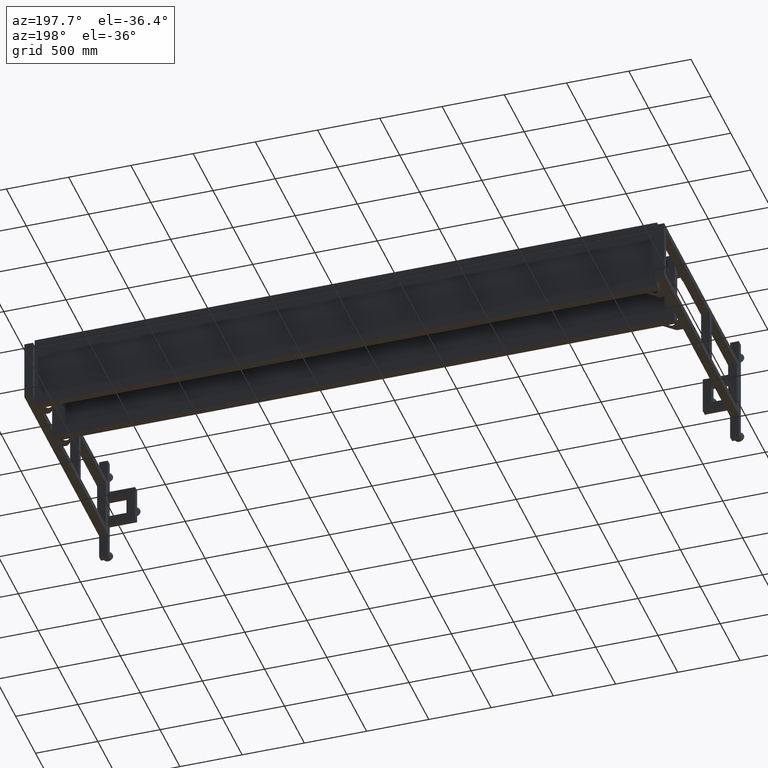
[diagram: clean part render]
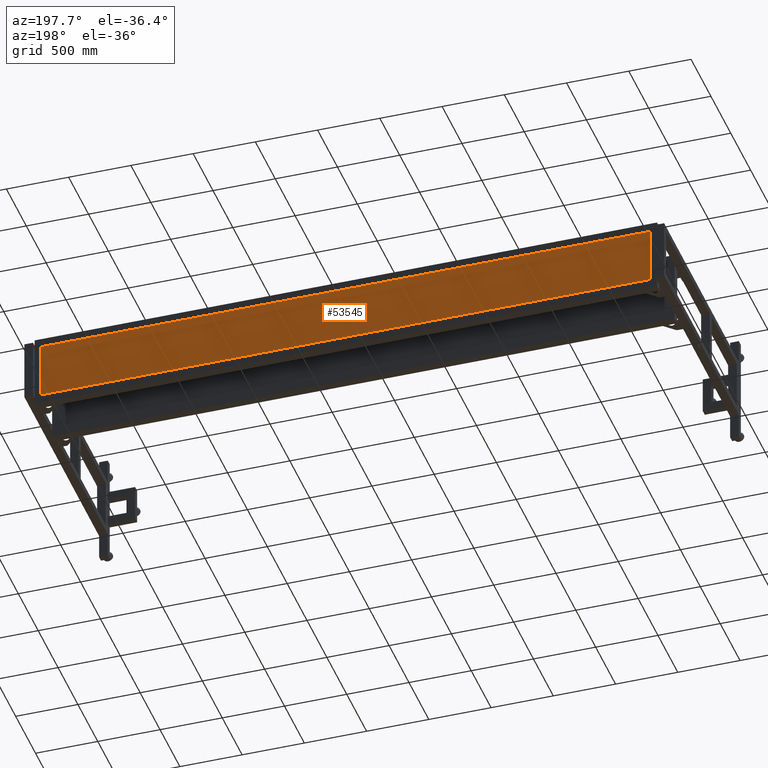
[diagram: same view with one face highlighted and labeled with its STEP entity id]
A machine part, auxiliary view. The second image highlights one B-rep face of the part: STEP entity #53545.
In plain terms, the highlighted planar face has unit normal (-0, 1, 0).
Its self-contained STEP definition (entity closure, byte-faithful):
#101 = EDGE_CURVE ( 'NONE', #91437, #56952, #119983, .T. ) ;
#435 = ORIENTED_EDGE ( 'NONE', *, *, #16857, .F. ) ;
#3911 = FACE_OUTER_BOUND ( 'NONE', #34801, .T. ) ;
#5128 = DIRECTION ( 'NONE',  ( -4.543257172554223644E-16, 1.000000000000000000, 1.000000000000000472E-15 ) ) ;
#5747 = CARTESIAN_POINT ( 'NONE',  ( -1216.662487437185973, 996.9410804020130854, -228.4899999999988438 ) ) ;
#12106 = ORIENTED_EDGE ( 'NONE', *, *, #92765, .T. ) ;
#16857 = EDGE_CURVE ( 'NONE', #89466, #91437, #26899, .T. ) ;
#26681 = CARTESIAN_POINT ( 'NONE',  ( -516.6624874371854048, 996.9410804020130854, -228.4899999999988438 ) ) ;
#26899 = LINE ( 'NONE', #92052, #41450 ) ;
#34801 = EDGE_LOOP ( 'NONE', ( #100614, #12106, #92619, #435 ) ) ;
#35250 = LINE ( 'NONE', #26681, #51930 ) ;
#35400 = CARTESIAN_POINT ( 'NONE',  ( 3680.317512562815864, 996.9410804020133128, 228.4900000000011744 ) ) ;
#38401 = DIRECTION ( 'NONE',  ( -1.000000000000000000, -4.543257172554223644E-16, 0.000000000000000000 ) ) ;
#41450 = VECTOR ( 'NONE', #120049, 1000.000000000000000 ) ;
#51371 = DIRECTION ( 'NONE',  ( 4.543257172554225407E-31, -1.000000000000000472E-15, 1.000000000000000000 ) ) ;
#51930 = VECTOR ( 'NONE', #64986, 1000.000000000000000 ) ;
#53545 = ADVANCED_FACE ( 'NONE', ( #3911 ), #106760, .T. ) ;
#56952 = VERTEX_POINT ( 'NONE', #93135 ) ;
#59425 = CARTESIAN_POINT ( 'NONE',  ( -1216.662487437185973, 996.9410804020130854, -228.4899999999988438 ) ) ;
#64986 = DIRECTION ( 'NONE',  ( 1.000000000000000000, 4.543257172554223644E-16, 0.000000000000000000 ) ) ;
#66242 = AXIS2_PLACEMENT_3D ( 'NONE', #98821, #5128, #51371 ) ;
#75421 = CARTESIAN_POINT ( 'NONE',  ( 1880.317512562814727, 996.9410804020137675, 228.4900000000011744 ) ) ;
#76323 = VECTOR ( 'NONE', #38401, 1000.000000000000000 ) ;
#84263 = VERTEX_POINT ( 'NONE', #5747 ) ;
#87673 = VECTOR ( 'NONE', #96616, 1000.000000000000000 ) ;
#89466 = VERTEX_POINT ( 'NONE', #92079 ) ;
#91437 = VERTEX_POINT ( 'NONE', #35400 ) ;
#92052 = CARTESIAN_POINT ( 'NONE',  ( 3680.317512562815864, 996.9410804020137675, -228.4899999999988438 ) ) ;
#92079 = CARTESIAN_POINT ( 'NONE',  ( 3680.317512562815864, 996.9410804020137675, -228.4899999999988438 ) ) ;
#92619 = ORIENTED_EDGE ( 'NONE', *, *, #101, .F. ) ;
#92765 = EDGE_CURVE ( 'NONE', #84263, #56952, #106956, .T. ) ;
#93135 = CARTESIAN_POINT ( 'NONE',  ( -1216.662487437185973, 996.9410804020126307, 228.4900000000011744 ) ) ;
#95561 = EDGE_CURVE ( 'NONE', #84263, #89466, #35250, .T. ) ;
#96616 = DIRECTION ( 'NONE',  ( 0.000000000000000000, -1.000000000000000472E-15, 1.000000000000000000 ) ) ;
#98821 = CARTESIAN_POINT ( 'NONE',  ( 681.8275125628146043, 996.9410804020134265, 1.167234175856414311E-12 ) ) ;
#100614 = ORIENTED_EDGE ( 'NONE', *, *, #95561, .F. ) ;
#106760 = PLANE ( 'NONE',  #66242 ) ;
#106956 = LINE ( 'NONE', #59425, #87673 ) ;
#119983 = LINE ( 'NONE', #75421, #76323 ) ;
#120049 = DIRECTION ( 'NONE',  ( 2.924973517714875585E-31, -1.000000000000000472E-15, 1.000000000000000000 ) ) ;